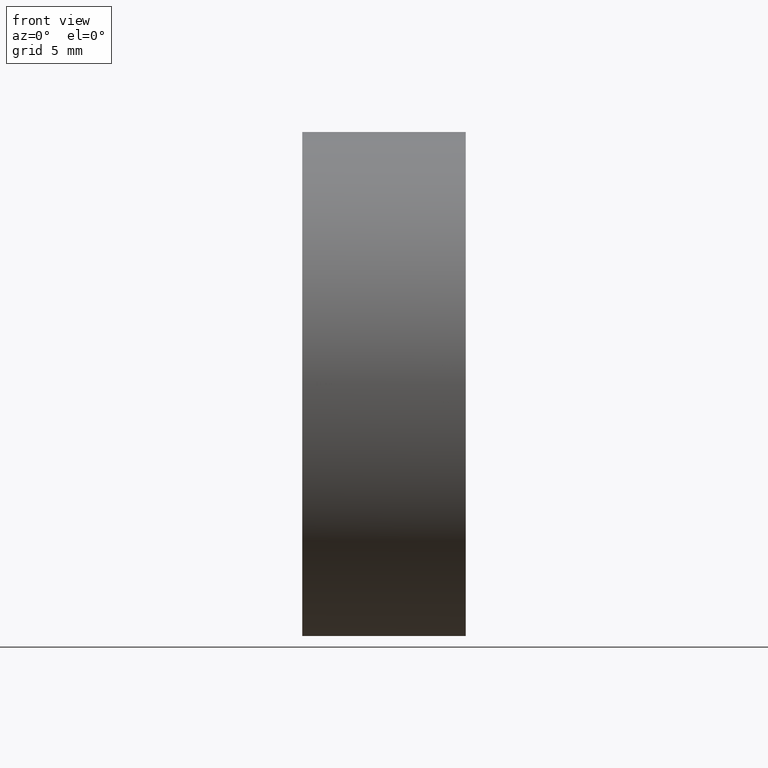
[diagram: clean part render]
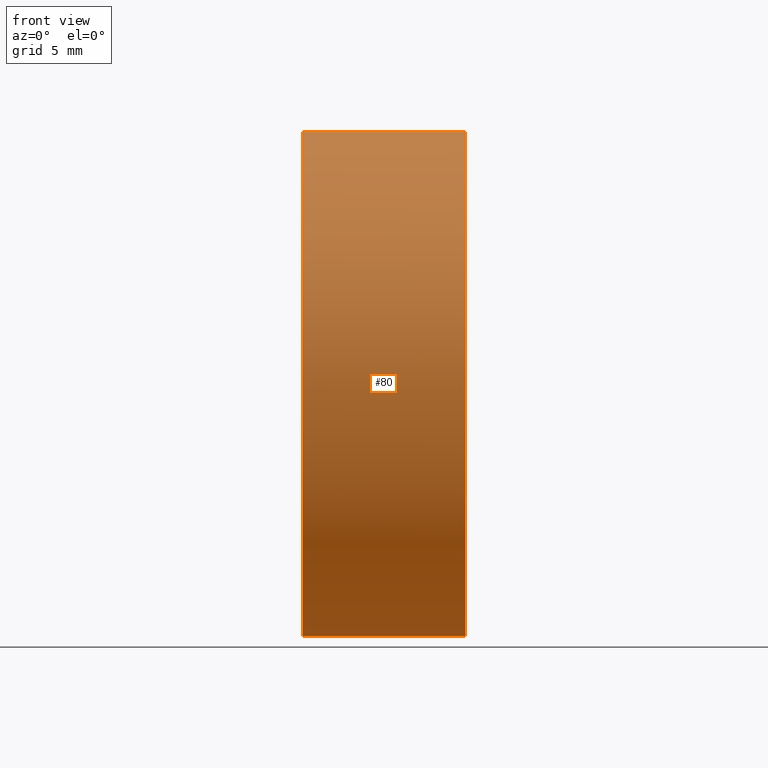
[diagram: same view with one face highlighted and labeled with its STEP entity id]
A machine part, front view. The second image highlights one B-rep face of the part: STEP entity #80.
In plain terms, the highlighted cylindrical surface (partial cylindrical patch) has radius 12.7 mm, axis along (-1, -0, -0).
Its self-contained STEP definition (entity closure, byte-faithful):
#3 = EDGE_CURVE ( 'NONE', #100, #89, #6, .T. ) ;
#6 = CIRCLE ( 'NONE', #164, 12.70000000000001700 ) ;
#9 = CARTESIAN_POINT ( 'NONE',  ( 127.5990375788394700, 71.19398908659370300, -12.70000000000001500 ) ) ;
#16 = CARTESIAN_POINT ( 'NONE',  ( 127.5990375788394700, 71.19398908659370300, 0.0000000000000000000 ) ) ;
#18 = CARTESIAN_POINT ( 'NONE',  ( 119.3629307920347200, 71.19398908659370300, 0.0000000000000000000 ) ) ;
#22 = DIRECTION ( 'NONE',  ( -1.000000000000000000, -0.0000000000000000000, -0.0000000000000000000 ) ) ;
#24 = DIRECTION ( 'NONE',  ( -1.000000000000000000, -0.0000000000000000000, -0.0000000000000000000 ) ) ;
#25 = CARTESIAN_POINT ( 'NONE',  ( 111.9552297575605700, 71.19398908659370300, 12.70000000000001000 ) ) ;
#26 = AXIS2_PLACEMENT_3D ( 'NONE', #18, #129, #60 ) ;
#27 = CARTESIAN_POINT ( 'NONE',  ( 127.5990375788394700, 71.19398908659370300, 12.70000000000001500 ) ) ;
#35 = VERTEX_POINT ( 'NONE', #40 ) ;
#37 = CARTESIAN_POINT ( 'NONE',  ( 111.9552297575605700, 71.19398908659370300, 0.0000000000000000000 ) ) ;
#39 = ORIENTED_EDGE ( 'NONE', *, *, #170, .F. ) ;
#40 = CARTESIAN_POINT ( 'NONE',  ( 119.3629307920347200, 71.19398908659370300, -12.70000000000000300 ) ) ;
#50 = EDGE_CURVE ( 'NONE', #142, #144, #143, .T. ) ;
#60 = DIRECTION ( 'NONE',  ( 0.0000000000000000000, 0.0000000000000000000, 1.000000000000000000 ) ) ;
#62 = ORIENTED_EDGE ( 'NONE', *, *, #126, .T. ) ;
#65 = DIRECTION ( 'NONE',  ( -1.000000000000000000, -0.0000000000000000000, -0.0000000000000000000 ) ) ;
#66 = ORIENTED_EDGE ( 'NONE', *, *, #148, .F. ) ;
#69 = DIRECTION ( 'NONE',  ( 0.0000000000000000000, 0.0000000000000000000, 1.000000000000000000 ) ) ;
#74 = ORIENTED_EDGE ( 'NONE', *, *, #3, .T. ) ;
#80 = ADVANCED_FACE ( 'NONE', ( #140 ), #86, .T. ) ;
#83 = VECTOR ( 'NONE', #84, 1000.000000000000000 ) ;
#84 = DIRECTION ( 'NONE',  ( -1.000000000000000000, -0.0000000000000000000, -0.0000000000000000000 ) ) ;
#86 = CYLINDRICAL_SURFACE ( 'NONE', #176, 12.70000000000001000 ) ;
#88 = CIRCLE ( 'NONE', #169, 12.70000000000001700 ) ;
#89 = VERTEX_POINT ( 'NONE', #92 ) ;
#92 = CARTESIAN_POINT ( 'NONE',  ( 127.5990375788394700, 58.49398908659370000, 0.0000000000000000000 ) ) ;
#93 = EDGE_LOOP ( 'NONE', ( #66, #74, #62, #125, #39 ) ) ;
#95 = CARTESIAN_POINT ( 'NONE',  ( 119.3629307920347200, 71.19398908659370300, 12.70000000000000300 ) ) ;
#99 = CIRCLE ( 'NONE', #26, 12.70000000000000300 ) ;
#100 = VERTEX_POINT ( 'NONE', #9 ) ;
#108 = LINE ( 'NONE', #146, #83 ) ;
#111 = CARTESIAN_POINT ( 'NONE',  ( 127.5990375788394700, 71.19398908659370300, 0.0000000000000000000 ) ) ;
#112 = DIRECTION ( 'NONE',  ( 0.0000000000000000000, 0.0000000000000000000, 1.000000000000000000 ) ) ;
#115 = VECTOR ( 'NONE', #65, 1000.000000000000000 ) ;
#123 = DIRECTION ( 'NONE',  ( -1.000000000000000000, -0.0000000000000000000, -0.0000000000000000000 ) ) ;
#125 = ORIENTED_EDGE ( 'NONE', *, *, #50, .T. ) ;
#126 = EDGE_CURVE ( 'NONE', #89, #142, #88, .T. ) ;
#129 = DIRECTION ( 'NONE',  ( -1.000000000000000000, -0.0000000000000000000, -0.0000000000000000000 ) ) ;
#140 = FACE_OUTER_BOUND ( 'NONE', #93, .T. ) ;
#142 = VERTEX_POINT ( 'NONE', #27 ) ;
#143 = LINE ( 'NONE', #25, #115 ) ;
#144 = VERTEX_POINT ( 'NONE', #95 ) ;
#146 = CARTESIAN_POINT ( 'NONE',  ( 111.9552297575605700, 71.19398908659370300, -12.70000000000001000 ) ) ;
#148 = EDGE_CURVE ( 'NONE', #100, #35, #108, .T. ) ;
#161 = DIRECTION ( 'NONE',  ( 0.0000000000000000000, 0.0000000000000000000, 1.000000000000000000 ) ) ;
#164 = AXIS2_PLACEMENT_3D ( 'NONE', #16, #24, #161 ) ;
#169 = AXIS2_PLACEMENT_3D ( 'NONE', #111, #123, #69 ) ;
#170 = EDGE_CURVE ( 'NONE', #35, #144, #99, .T. ) ;
#176 = AXIS2_PLACEMENT_3D ( 'NONE', #37, #22, #112 ) ;